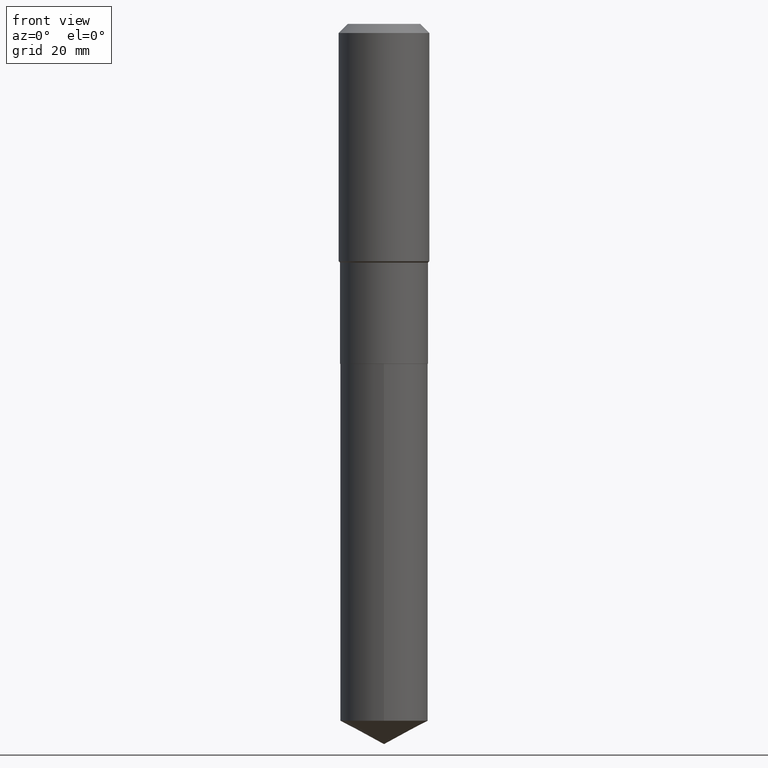
[diagram: clean part render]
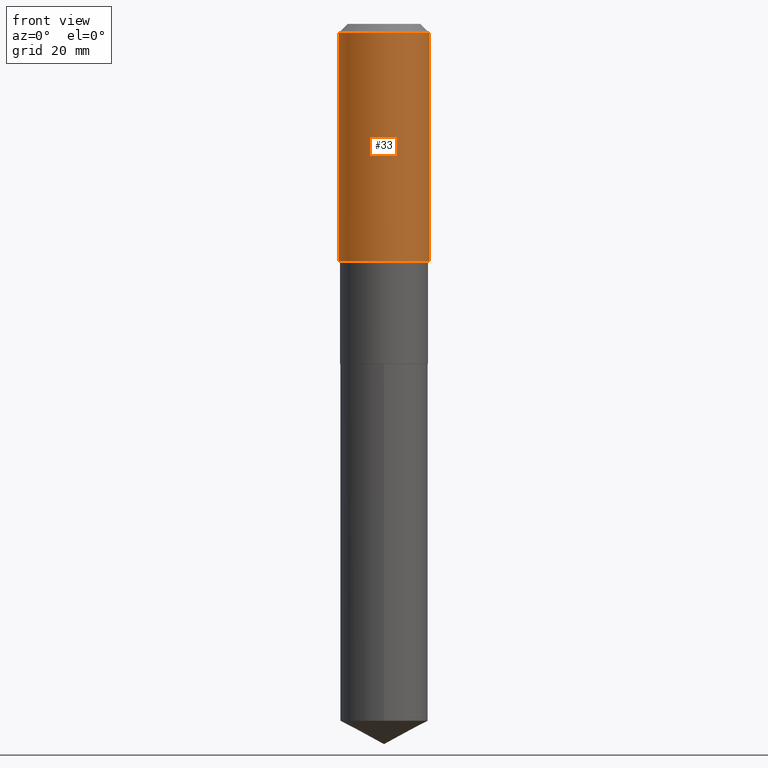
[diagram: same view with one face highlighted and labeled with its STEP entity id]
A machine part, front view. The second image highlights one B-rep face of the part: STEP entity #33.
In plain terms, the highlighted cylindrical surface (partial cylindrical patch) has radius 9.0005 mm, axis along (-0, 0, 1).
Its self-contained STEP definition (entity closure, byte-faithful):
#1 = DIRECTION ( 'NONE',  ( -2.445468806185136597E-29, 3.491481338843145583E-15, 1.000000000000000000 ) ) ;
#3 = DIRECTION ( 'NONE',  ( 1.000000000000000000, -6.982962677686266711E-15, 0.000000000000000000 ) ) ;
#6 = VECTOR ( 'NONE', #356, 39.37007874015748143 ) ;
#32 = CARTESIAN_POINT ( 'NONE',  ( 0.3543499999999999983, -2.721854107321943733E-15, -0.07087000000000043265 ) ) ;
#33 = ADVANCED_FACE ( 'NONE', ( #373 ), #211, .T. ) ;
#49 = VERTEX_POINT ( 'NONE', #449 ) ;
#52 = VERTEX_POINT ( 'NONE', #186 ) ;
#59 = LINE ( 'NONE', #139, #86 ) ;
#65 = CARTESIAN_POINT ( 'NONE',  ( 0.000000000000000000, 0.000000000000000000, 0.000000000000000000 ) ) ;
#77 = DIRECTION ( 'NONE',  ( -2.445468806185136597E-29, 3.491481338843145583E-15, 1.000000000000000000 ) ) ;
#80 = VERTEX_POINT ( 'NONE', #310 ) ;
#85 = AXIS2_PLACEMENT_3D ( 'NONE', #376, #77, #224 ) ;
#86 = VECTOR ( 'NONE', #293, 39.37007874015748143 ) ;
#99 = EDGE_CURVE ( 'NONE', #49, #190, #295, .T. ) ;
#107 = EDGE_CURVE ( 'NONE', #80, #52, #336, .T. ) ;
#139 = CARTESIAN_POINT ( 'NONE',  ( 0.3543500000000001648, -2.474412824838129483E-15, 1.727873240503290590E-29 ) ) ;
#142 = ORIENTED_EDGE ( 'NONE', *, *, #99, .F. ) ;
#156 = CARTESIAN_POINT ( 'NONE',  ( 1.733103742943417062E-30, -2.474412824838152853E-16, -0.07087000000000043265 ) ) ;
#178 = DIRECTION ( 'NONE',  ( 1.000000000000000000, -6.982962677686265922E-15, 4.876176775795935793E-29 ) ) ;
#186 = CARTESIAN_POINT ( 'NONE',  ( 0.3543500000000002204, -8.952158152793815822E-15, -1.855299999999999727 ) ) ;
#190 = VERTEX_POINT ( 'NONE', #32 ) ;
#211 = CYLINDRICAL_SURFACE ( 'NONE', #377, 0.3543500000000001648 ) ;
#224 = DIRECTION ( 'NONE',  ( 1.000000000000000000, -6.982962677686269077E-15, 0.000000000000000000 ) ) ;
#239 = ORIENTED_EDGE ( 'NONE', *, *, #107, .T. ) ;
#247 = ORIENTED_EDGE ( 'NONE', *, *, #291, .F. ) ;
#256 = AXIS2_PLACEMENT_3D ( 'NONE', #156, #1, #3 ) ;
#291 = EDGE_CURVE ( 'NONE', #80, #49, #466, .T. ) ;
#293 = DIRECTION ( 'NONE',  ( -2.445468806185136877E-29, 3.491481338843145188E-15, 1.000000000000000000 ) ) ;
#295 = CIRCLE ( 'NONE', #256, 0.3543499999999999983 ) ;
#310 = CARTESIAN_POINT ( 'NONE',  ( -0.3543500000000002204, -3.959937143789770553E-15, -1.855299999999999727 ) ) ;
#336 = CIRCLE ( 'NONE', #85, 0.3543500000000002204 ) ;
#356 = DIRECTION ( 'NONE',  ( -2.445468806185136877E-29, 3.491481338843145188E-15, 1.000000000000000000 ) ) ;
#373 = FACE_OUTER_BOUND ( 'NONE', #461, .T. ) ;
#376 = CARTESIAN_POINT ( 'NONE',  ( 4.537078276115283261E-29, -6.477745327955687522E-15, -1.855299999999999727 ) ) ;
#377 = AXIS2_PLACEMENT_3D ( 'NONE', #65, #441, #178 ) ;
#424 = ORIENTED_EDGE ( 'NONE', *, *, #440, .T. ) ;
#426 = CARTESIAN_POINT ( 'NONE',  ( -0.3543500000000001648, 2.517808184165916180E-15, -1.743024649231826627E-29 ) ) ;
#440 = EDGE_CURVE ( 'NONE', #52, #190, #59, .T. ) ;
#441 = DIRECTION ( 'NONE',  ( -2.445468806185136597E-29, 3.491481338843145583E-15, 1.000000000000000000 ) ) ;
#449 = CARTESIAN_POINT ( 'NONE',  ( -0.3543499999999999983, -8.447851210538351005E-16, -0.07087000000000043265 ) ) ;
#461 = EDGE_LOOP ( 'NONE', ( #247, #239, #424, #142 ) ) ;
#466 = LINE ( 'NONE', #426, #6 ) ;